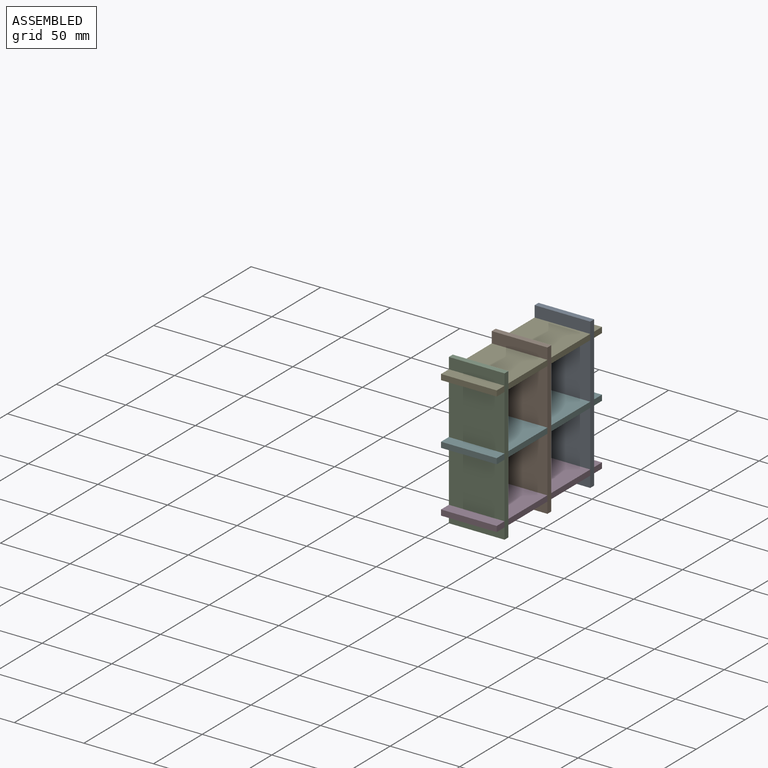
[diagram: assembled view]
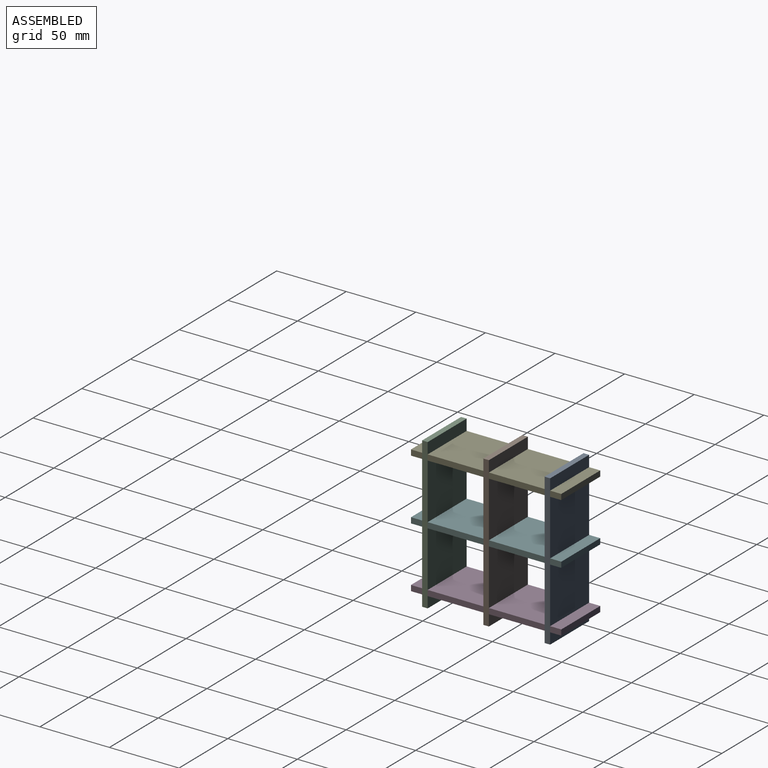
[diagram: assembled view, second angle]
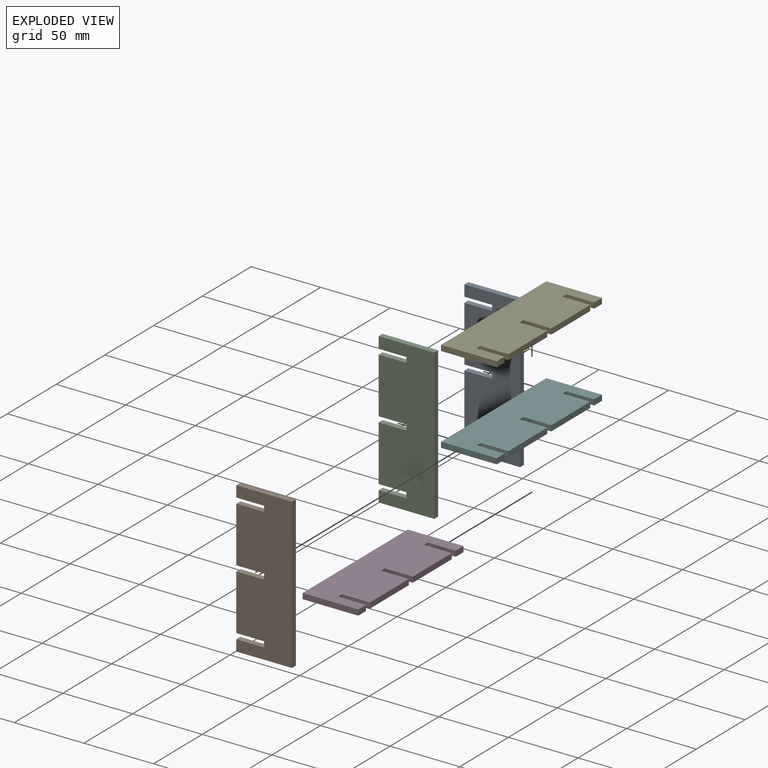
[diagram: exploded view]
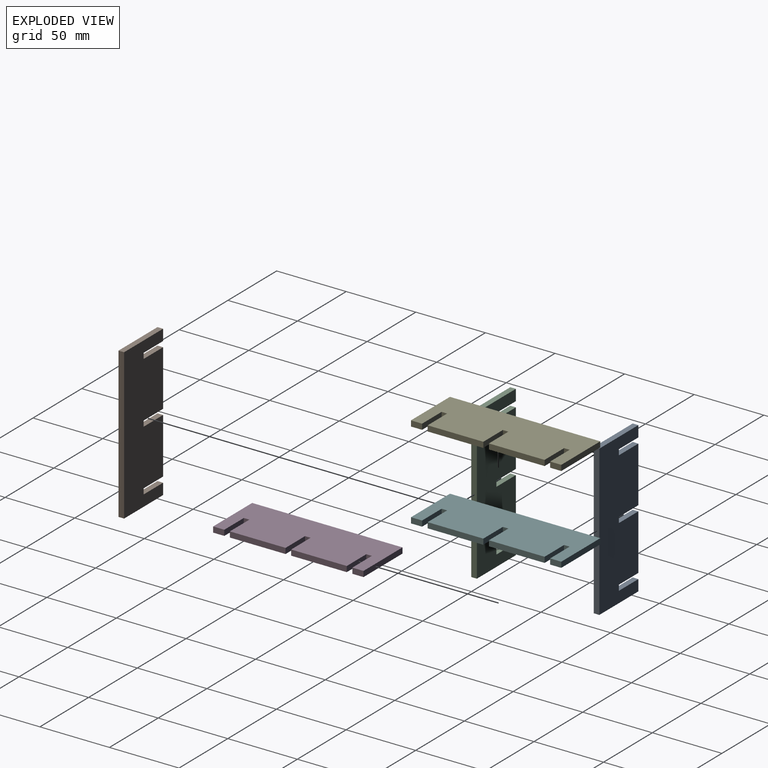
[diagram: exploded view, second angle]
ASSEMBLY  parts=6 mates=15
PART A: 18 faces, bbox 40x4x108 mm
  f0: plane 40x4mm, normal (0,0,1), area 160mm2, adj f1,f15,f16,f17
  f1: plane 8x4mm, normal (-1,0,0), area 32mm2, adj f0,f2,f16,f17
  f2: plane 20x4mm, normal (0,0,-1), area 80mm2, adj f1,f3,f16,f17
  f3: plane 4x4mm, normal (-1,0,0), area 16mm2, adj f2,f4,f16,f17
  f4: plane 20x4mm, normal (0,0,1), area 80mm2, adj f3,f5,f16,f17
  f5: plane 40x4mm, normal (-1,0,0), area 160mm2, adj f4,f6,f16,f17
  f6: plane 20x4mm, normal (0,0,-1), area 80mm2, adj f5,f7,f16,f17
  f7: plane 4x4mm, normal (-1,0,0), area 16mm2, adj f6,f8,f16,f17
  f8: plane 20x4mm, normal (0,0,1), area 80mm2, adj f7,f9,f16,f17
  f9: plane 40x4mm, normal (-1,0,0), area 160mm2, adj f8,f10,f16,f17
  f10: plane 20x4mm, normal (0,0,-1), area 80mm2, adj f9,f11,f16,f17
  f11: plane 4x4mm, normal (-1,0,0), area 16mm2, adj f10,f12,f16,f17
  f12: plane 20x4mm, normal (0,0,1), area 80mm2, adj f11,f13,f16,f17
  f13: plane 8x4mm, normal (-1,0,0), area 32mm2, adj f12,f14,f16,f17
  f14: plane 40x4mm, normal (0,0,-1), area 160mm2, adj f13,f15,f16,f17
  f15: plane 108x4mm, normal (1,0,0), area 432mm2, adj f0,f14,f16,f17
  f16: plane 108x40mm, normal (0,-1,0), area 4080mm2, adj f0,f1,f2,f3,f4,f5,f6,f7
  f17: plane 108x40mm, normal (0,1,0), area 4080mm2, adj f0,f1,f2,f3,f4,f5,f6,f7
PART B: same geometry as A
PART C: same geometry as A
PART D: same geometry as A
PART E: same geometry as A
PART F: same geometry as A
PLACE A t=(75.29,45.1,41.65)mm fixed
PLACE B t=(75.29,1.1,41.65)mm
PLACE C t=(75.29,-42.9,41.65)mm
PLACE D rot(axis=(0,-0.71,0.71),180deg) t=(-5.3,14.29,10.83)mm
PLACE E rot(axis=(0,-0.71,-0.71),180deg) t=(-5.3,-16.09,102.83)mm
PLACE F rot(axis=(0,-0.71,0.71),180deg) t=(-5.3,14.29,54.83)mm
MATE planar C.f4 <-> E.f16  axis (0,0,1) through (15,-42.9,98.83)mm
MATE planar A.f8 <-> F.f17  axis (0,0,1) through (15,41.1,54.83)mm
MATE planar D.f12 <-> A.f17  axis (0,-1,0) through (45,45.1,12.83)mm
MATE planar A.f2 <-> E.f17  axis (0,0,-1) through (15,43.1,102.83)mm
MATE planar A.f12 <-> D.f17  axis (0,0,1) through (25,43.1,10.83)mm
MATE planar B.f16 <-> E.f8  axis (0,-1,0) through (35.58,-2.9,56.83)mm
MATE planar B.f4 <-> E.f16  axis (0,0,1) through (25,-0.9,98.83)mm
MATE planar F.f12 <-> A.f17  axis (0,-1,0) through (45,45.1,58.83)mm
MATE planar E.f10 <-> C.f17  axis (0,-1,0) through (45,-42.9,100.83)mm
MATE planar D.f3 <-> A.f11  axis (1,0,0) through (35,-44.9,12.83)mm
MATE planar C.f3 <-> E.f11  axis (-1,0,0) through (35,-46.9,100.83)mm
MATE planar E.f7 <-> B.f3  axis (1,0,0) through (35,-0.9,100.83)mm
MATE planar E.f3 <-> A.f3  axis (1,0,0) through (35,43.1,100.83)mm
MATE planar E.f2 <-> A.f17  axis (0,-1,0) through (45,45.1,100.83)mm
MATE planar F.f11 <-> A.f7  axis (1,0,0) through (35,43.1,56.83)mm
